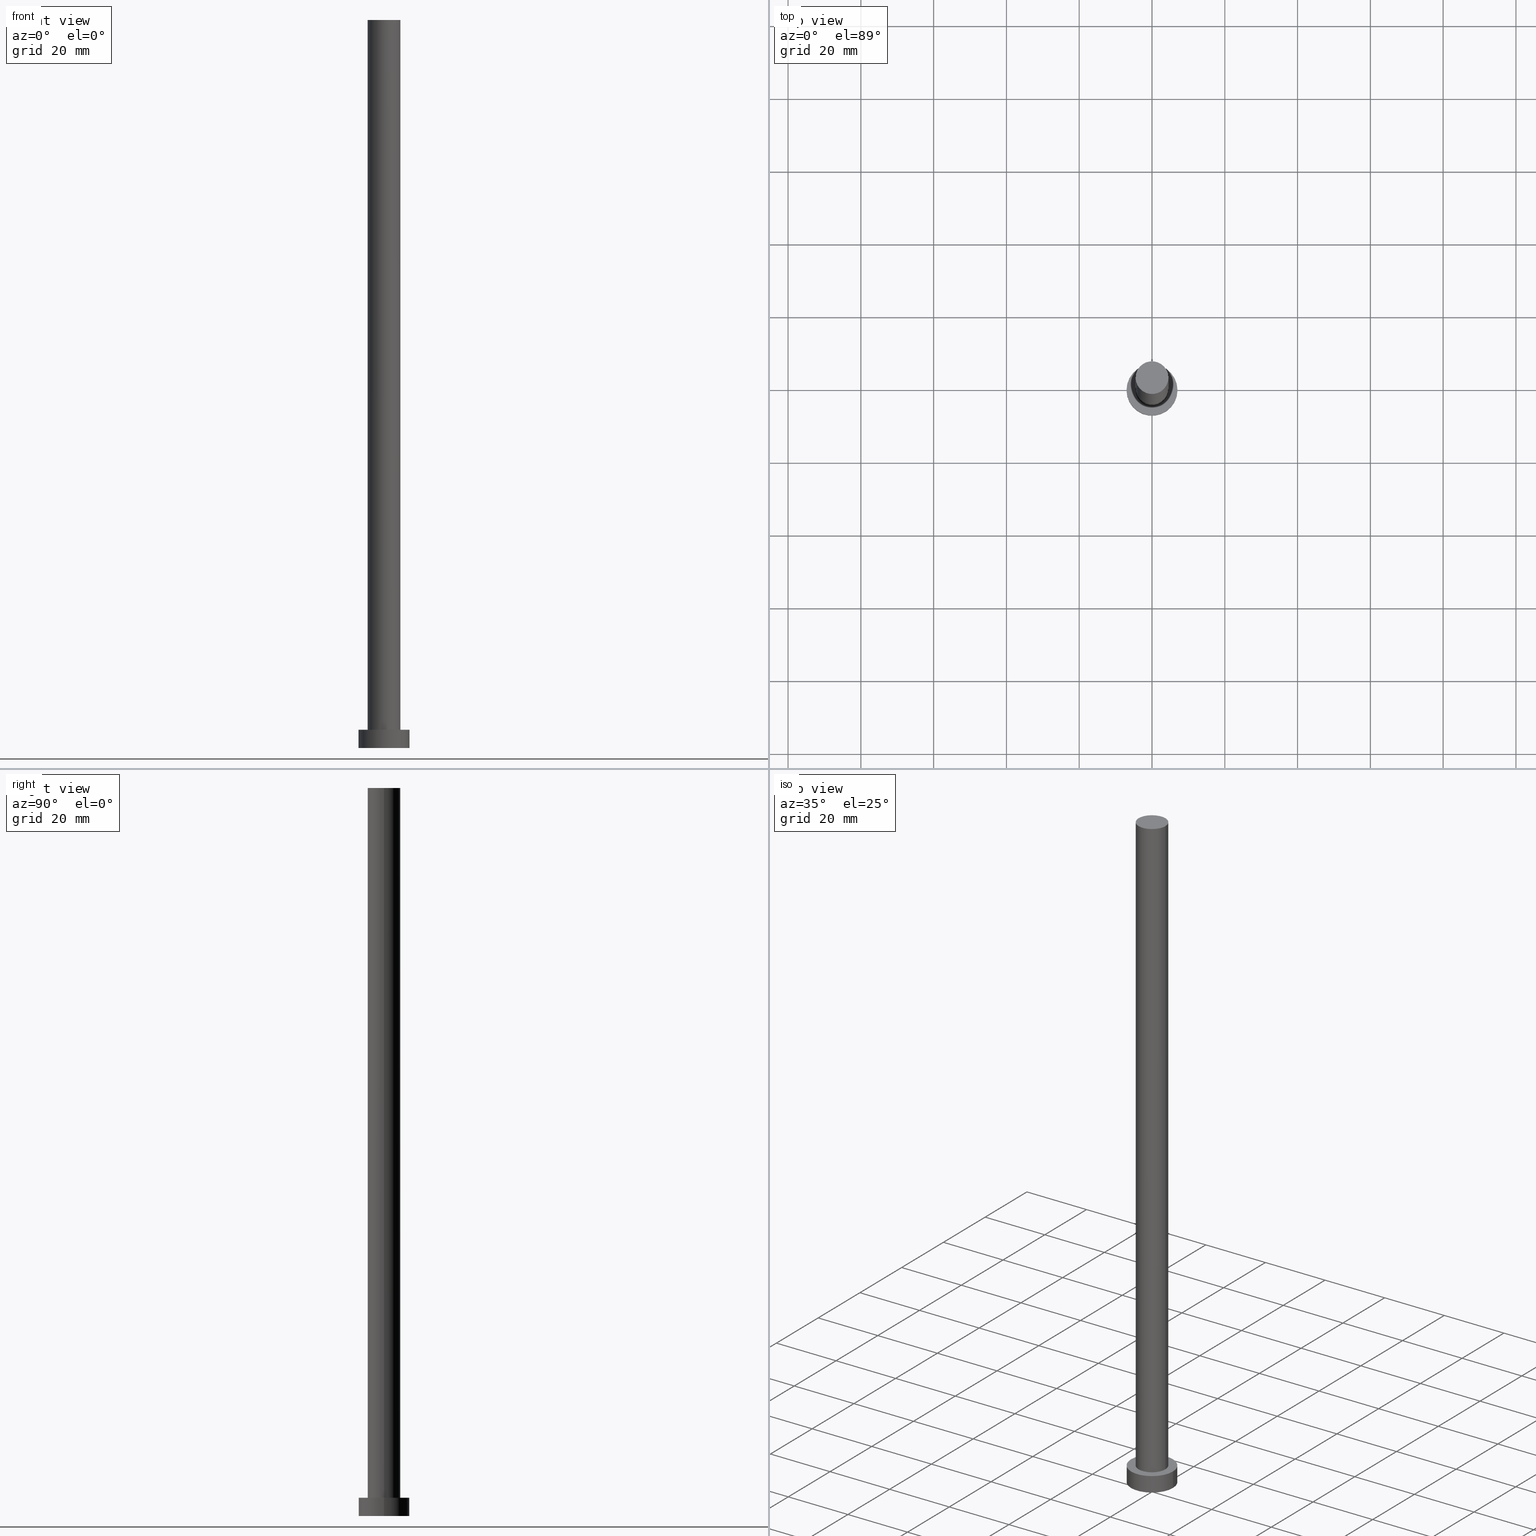
[diagram: canonical four-view strip — front | top / right | iso, engineering-drawing reading convention]
A machine part, canonical four-view strip (front | top / right | iso — engineering-drawing reading convention). The complete STEP part file that produces these views, byte-faithful:
ISO-10303-21;
HEADER;
FILE_DESCRIPTION (( 'STEP AP203' ),
    '1' );
FILE_NAME ('adfc.STEP',
    '2023-02-13T10:50:50',
    ( '' ),
    ( '' ),
    'SwSTEP 2.0',
    'SolidWorks 2019',
    '' );
FILE_SCHEMA (( 'CONFIG_CONTROL_DESIGN' ));
ENDSEC;

DATA;
#1 = DIRECTION ( 'NONE',  ( 0.000000000000000000, 0.000000000000000000, 1.000000000000000000 ) ) ;
#2 = PERSON_AND_ORGANIZATION ( #99, #81 ) ;
#3 = SHAPE_DEFINITION_REPRESENTATION ( #186, #176 ) ;
#4 = COORDINATED_UNIVERSAL_TIME_OFFSET ( 1, 0, .AHEAD. ) ;
#5 = ORIENTED_EDGE ( 'NONE', *, *, #194, .T. ) ;
#6 = EDGE_CURVE ( 'NONE', #10, #137, #82, .T. ) ;
#7 = APPROVAL_ROLE ( '' ) ;
#8 = APPROVAL_STATUS ( 'not_yet_approved' ) ;
#9 = AXIS2_PLACEMENT_3D ( 'NONE', #101, #141, #185 ) ;
#10 = VERTEX_POINT ( 'NONE', #79 ) ;
#11 = APPROVAL_PERSON_ORGANIZATION ( #196, #32, #7 ) ;
#12 = PERSON_AND_ORGANIZATION ( #99, #81 ) ;
#13 = ORIENTED_EDGE ( 'NONE', *, *, #104, .T. ) ;
#14 = CARTESIAN_POINT ( 'NONE',  ( 0.000000000000000000, 0.000000000000000000, 200.0000000000000000 ) ) ;
#15 = MANIFOLD_SOLID_BREP ( 'P�idat vysunut�m3', #216 ) ;
#16 = FACE_OUTER_BOUND ( 'NONE', #157, .T. ) ;
#17 = CARTESIAN_POINT ( 'NONE',  ( -7.000000000000000000, 0.000000000000000000, 0.000000000000000000 ) ) ;
#18 = ORIENTED_EDGE ( 'NONE', *, *, #198, .F. ) ;
#19 = CARTESIAN_POINT ( 'NONE',  ( 4.500000000000000888, 5.510910596163089556E-16, 5.000000000000000000 ) ) ;
#20 = PERSON_AND_ORGANIZATION_ROLE ( 'design_owner' ) ;
#21 = CARTESIAN_POINT ( 'NONE',  ( 0.000000000000000000, 0.000000000000000000, 200.0000000000000000 ) ) ;
#22 = CC_DESIGN_APPROVAL ( #88, ( #240 ) ) ;
#23 = CARTESIAN_POINT ( 'NONE',  ( 0.000000000000000000, 0.000000000000000000, 5.000000000000000000 ) ) ;
#24 = DATE_AND_TIME ( #215, #69 ) ;
#25 = ORIENTED_EDGE ( 'NONE', *, *, #62, .F. ) ;
#26 = VERTEX_POINT ( 'NONE', #232 ) ;
#27 = CIRCLE ( 'NONE', #251, 4.500000000000000888 ) ;
#28 = ORIENTED_EDGE ( 'NONE', *, *, #6, .F. ) ;
#29 = PRODUCT_DEFINITION ( 'NEZN�M�', '', #42, #236 ) ;
#30 = PERSON_AND_ORGANIZATION_ROLE ( 'creator' ) ;
#31 = VERTEX_POINT ( 'NONE', #17 ) ;
#32 = APPROVAL ( #245, 'NEUR�EN�' ) ;
#33 = CIRCLE ( 'NONE', #96, 7.000000000000000000 ) ;
#34 = FACE_BOUND ( 'NONE', #73, .T. ) ;
#35 = ORIENTED_EDGE ( 'NONE', *, *, #52, .T. ) ;
#36 = CARTESIAN_POINT ( 'NONE',  ( 7.000000000000000000, 8.572527594031473190E-16, 0.000000000000000000 ) ) ;
#37 = DIRECTION ( 'NONE',  ( -0.000000000000000000, -0.000000000000000000, -1.000000000000000000 ) ) ;
#38 = EDGE_LOOP ( 'NONE', ( #28, #187, #56, #200 ) ) ;
#39 = DIRECTION ( 'NONE',  ( 0.000000000000000000, 0.000000000000000000, 1.000000000000000000 ) ) ;
#40 = PRODUCT_RELATED_PRODUCT_CATEGORY ( 'detail', '', ( #124 ) ) ;
#41 = CARTESIAN_POINT ( 'NONE',  ( 0.000000000000000000, 0.000000000000000000, 0.000000000000000000 ) ) ;
#42 = PRODUCT_DEFINITION_FORMATION_WITH_SPECIFIED_SOURCE ( 'LIBOVOLN�', '', #124, .NOT_KNOWN. ) ;
#43 = EDGE_CURVE ( 'NONE', #26, #76, #162, .T. ) ;
#44 = DIRECTION ( 'NONE',  ( 0.000000000000000000, 0.000000000000000000, 1.000000000000000000 ) ) ;
#45 = AXIS2_PLACEMENT_3D ( 'NONE', #125, #39, #144 ) ;
#46 = DATE_TIME_ROLE ( 'creation_date' ) ;
#47 = APPLICATION_CONTEXT ( 'configuration controlled 3d designs of mechanical parts and assemblies' ) ;
#48 = ORIENTED_EDGE ( 'NONE', *, *, #104, .F. ) ;
#49 = CC_DESIGN_PERSON_AND_ORGANIZATION_ASSIGNMENT ( #66, #115, ( #240 ) ) ;
#50 = APPROVAL_DATE_TIME ( #153, #32 ) ;
#51 = PERSON_AND_ORGANIZATION_ROLE ( 'design_supplier' ) ;
#52 = EDGE_CURVE ( 'NONE', #76, #31, #74, .T. ) ;
#53 = CARTESIAN_POINT ( 'NONE',  ( 4.500000000000000888, 5.510910596163089556E-16, 200.0000000000000000 ) ) ;
#54 = ADVANCED_FACE ( 'NONE', ( #164 ), #252, .T. ) ;
#55 = VERTEX_POINT ( 'NONE', #254 ) ;
#56 = ORIENTED_EDGE ( 'NONE', *, *, #62, .T. ) ;
#57 = CIRCLE ( 'NONE', #94, 4.500000000000000888 ) ;
#58 = CIRCLE ( 'NONE', #113, 7.000000000000000000 ) ;
#59 = DIRECTION ( 'NONE',  ( -0.000000000000000000, -0.000000000000000000, -1.000000000000000000 ) ) ;
#60 = APPROVAL_PERSON_ORGANIZATION ( #70, #88, #95 ) ;
#61 = APPLICATION_PROTOCOL_DEFINITION ( 'international standard', 'config_control_design', 1994, #103 ) ;
#62 = EDGE_CURVE ( 'NONE', #102, #230, #253, .T. ) ;
#63 = DIRECTION ( 'NONE',  ( 1.000000000000000000, 0.000000000000000000, 0.000000000000000000 ) ) ;
#64 = DIRECTION ( 'NONE',  ( -0.000000000000000000, -0.000000000000000000, -1.000000000000000000 ) ) ;
#65 = SECURITY_CLASSIFICATION_LEVEL ( 'unclassified' ) ;
#66 = PERSON_AND_ORGANIZATION ( #99, #81 ) ;
#67 = EDGE_LOOP ( 'NONE', ( #92, #193, #219, #150 ) ) ;
#68 = CALENDAR_DATE ( 2023, 13, 2 ) ;
#69 = LOCAL_TIME ( 11, 50, 50.00000000000000000, #175 ) ;
#70 = PERSON_AND_ORGANIZATION ( #99, #81 ) ;
#71 = EDGE_LOOP ( 'NONE', ( #48, #234, #152, #25 ) ) ;
#72 = ADVANCED_FACE ( 'NONE', ( #159 ), #160, .F. ) ;
#73 = EDGE_LOOP ( 'NONE', ( #132, #174 ) ) ;
#74 = CIRCLE ( 'NONE', #9, 7.000000000000000000 ) ;
#75 = DIRECTION ( 'NONE',  ( 0.000000000000000000, 0.000000000000000000, 1.000000000000000000 ) ) ;
#76 = VERTEX_POINT ( 'NONE', #36 ) ;
#77 = ADVANCED_FACE ( 'NONE', ( #202 ), #231, .T. ) ;
#78 = ADVANCED_FACE ( 'NONE', ( #34, #16 ), #117, .T. ) ;
#79 = CARTESIAN_POINT ( 'NONE',  ( 4.500000000000000888, 5.510910596163089556E-16, 200.0000000000000000 ) ) ;
#80 = CARTESIAN_POINT ( 'NONE',  ( -4.500000000000000888, 0.000000000000000000, 200.0000000000000000 ) ) ;
#81 = ORGANIZATION ( 'NEUR�EN�', 'NEUR�EN�', '' ) ;
#82 = LINE ( 'NONE', #53, #206 ) ;
#83 = DIRECTION ( 'NONE',  ( 1.000000000000000000, 0.000000000000000000, 0.000000000000000000 ) ) ;
#84 = AXIS2_PLACEMENT_3D ( 'NONE', #183, #110, #83 ) ;
#85 = CARTESIAN_POINT ( 'NONE',  ( 0.000000000000000000, 0.000000000000000000, 5.000000000000000000 ) ) ;
#86 = CARTESIAN_POINT ( 'NONE',  ( 0.000000000000000000, 0.000000000000000000, 5.000000000000000000 ) ) ;
#87 = AXIS2_PLACEMENT_3D ( 'NONE', #97, #119, #184 ) ;
#88 = APPROVAL ( #8, 'NEUR�EN�' ) ;
#89 = ORIENTED_EDGE ( 'NONE', *, *, #93, .T. ) ;
#90 = COORDINATED_UNIVERSAL_TIME_OFFSET ( 1, 0, .AHEAD. ) ;
#91 = EDGE_LOOP ( 'NONE', ( #18, #155 ) ) ;
#92 = ORIENTED_EDGE ( 'NONE', *, *, #43, .F. ) ;
#93 = EDGE_CURVE ( 'NONE', #102, #10, #143, .T. ) ;
#94 = AXIS2_PLACEMENT_3D ( 'NONE', #86, #1, #168 ) ;
#95 = APPROVAL_ROLE ( '' ) ;
#96 = AXIS2_PLACEMENT_3D ( 'NONE', #222, #148, #239 ) ;
#97 = CARTESIAN_POINT ( 'NONE',  ( 0.000000000000000000, 0.000000000000000000, 200.0000000000000000 ) ) ;
#98 = CIRCLE ( 'NONE', #84, 4.500000000000000888 ) ;
#99 = PERSON ( 'NEUR�EN�', 'NEUR�EN�', 'NEUR�EN�', ('NEUR�EN�'), ('NEUR�EN�'), ('NEUR�EN�') ) ;
#100 = CARTESIAN_POINT ( 'NONE',  ( -4.500000000000000888, 0.000000000000000000, 200.0000000000000000 ) ) ;
#101 = CARTESIAN_POINT ( 'NONE',  ( 0.000000000000000000, 0.000000000000000000, 0.000000000000000000 ) ) ;
#102 = VERTEX_POINT ( 'NONE', #100 ) ;
#103 = APPLICATION_CONTEXT ( 'configuration controlled 3d designs of mechanical parts and assemblies' ) ;
#104 = EDGE_CURVE ( 'NONE', #10, #102, #98, .T. ) ;
#105 = CARTESIAN_POINT ( 'NONE',  ( 0.000000000000000000, 0.000000000000000000, 5.000000000000000000 ) ) ;
#106 = CC_DESIGN_APPROVAL ( #32, ( #42 ) ) ;
#107 = APPLICATION_PROTOCOL_DEFINITION ( 'international standard', 'config_control_design', 1994, #47 ) ;
#108 = DIRECTION ( 'NONE',  ( 1.000000000000000000, 0.000000000000000000, 0.000000000000000000 ) ) ;
#109 = DIRECTION ( 'NONE',  ( -0.000000000000000000, -0.000000000000000000, -1.000000000000000000 ) ) ;
#110 = DIRECTION ( 'NONE',  ( 0.000000000000000000, 0.000000000000000000, 1.000000000000000000 ) ) ;
#111 = DATE_TIME_ROLE ( 'classification_date' ) ;
#112 = ORIENTED_EDGE ( 'NONE', *, *, #194, .F. ) ;
#113 = AXIS2_PLACEMENT_3D ( 'NONE', #165, #129, #190 ) ;
#114 = APPROVAL_STATUS ( 'not_yet_approved' ) ;
#115 = PERSON_AND_ORGANIZATION_ROLE ( 'classification_officer' ) ;
#116 = COORDINATED_UNIVERSAL_TIME_OFFSET ( 1, 0, .AHEAD. ) ;
#117 = PLANE ( 'NONE',  #161 ) ;
#118 = EDGE_CURVE ( 'NONE', #137, #230, #57, .T. ) ;
#119 = DIRECTION ( 'NONE',  ( -0.000000000000000000, -0.000000000000000000, -1.000000000000000000 ) ) ;
#120 = DIRECTION ( 'NONE',  ( 0.000000000000000000, 0.000000000000000000, 1.000000000000000000 ) ) ;
#121 = AXIS2_PLACEMENT_3D ( 'NONE', #221, #120, #205 ) ;
#122 = UNCERTAINTY_MEASURE_WITH_UNIT (LENGTH_MEASURE( 1.000000000000000082E-05 ), #224, 'distance_accuracy_value', 'NONE');
#123 =( NAMED_UNIT ( * ) PLANE_ANGLE_UNIT ( ) SI_UNIT ( $, .RADIAN. ) );
#124 = PRODUCT ( 'adfc', 'adfc', '', ( #188 ) ) ;
#125 = CARTESIAN_POINT ( 'NONE',  ( 0.000000000000000000, 0.000000000000000000, 200.0000000000000000 ) ) ;
#126 = CYLINDRICAL_SURFACE ( 'NONE', #145, 4.500000000000000888 ) ;
#127 = VECTOR ( 'NONE', #37, 1000.000000000000000 ) ;
#128 = APPROVAL_PERSON_ORGANIZATION ( #12, #212, #154 ) ;
#129 = DIRECTION ( 'NONE',  ( 0.000000000000000000, 0.000000000000000000, 1.000000000000000000 ) ) ;
#130 = CC_DESIGN_DATE_AND_TIME_ASSIGNMENT ( #249, #46, ( #29 ) ) ;
#131 = CALENDAR_DATE ( 2023, 13, 2 ) ;
#132 = ORIENTED_EDGE ( 'NONE', *, *, #151, .F. ) ;
#133 = PERSON_AND_ORGANIZATION_ROLE ( 'creator' ) ;
#134 = LOCAL_TIME ( 11, 50, 50.00000000000000000, #116 ) ;
#135 = EDGE_CURVE ( 'NONE', #55, #31, #169, .T. ) ;
#136 = DIRECTION ( 'NONE',  ( 1.000000000000000000, 0.000000000000000000, -0.000000000000000000 ) ) ;
#137 = VERTEX_POINT ( 'NONE', #19 ) ;
#138 = ADVANCED_FACE ( 'NONE', ( #170 ), #126, .T. ) ;
#139 = ORIENTED_EDGE ( 'NONE', *, *, #43, .T. ) ;
#140 = LOCAL_TIME ( 11, 50, 50.00000000000000000, #4 ) ;
#141 = DIRECTION ( 'NONE',  ( 0.000000000000000000, 0.000000000000000000, 1.000000000000000000 ) ) ;
#142 = CARTESIAN_POINT ( 'NONE',  ( 0.000000000000000000, 0.000000000000000000, 5.000000000000000000 ) ) ;
#143 = CIRCLE ( 'NONE', #213, 4.500000000000000888 ) ;
#144 = DIRECTION ( 'NONE',  ( 1.000000000000000000, 0.000000000000000000, -0.000000000000000000 ) ) ;
#145 = AXIS2_PLACEMENT_3D ( 'NONE', #21, #207, #225 ) ;
#146 = DIRECTION ( 'NONE',  ( -1.000000000000000000, 0.000000000000000000, 0.000000000000000000 ) ) ;
#147 = PLANE ( 'NONE',  #45 ) ;
#148 = DIRECTION ( 'NONE',  ( 0.000000000000000000, 0.000000000000000000, 1.000000000000000000 ) ) ;
#149 = ADVANCED_FACE ( 'NONE', ( #244 ), #241, .T. ) ;
#150 = ORIENTED_EDGE ( 'NONE', *, *, #198, .T. ) ;
#151 = EDGE_CURVE ( 'NONE', #230, #137, #27, .T. ) ;
#152 = ORIENTED_EDGE ( 'NONE', *, *, #118, .T. ) ;
#153 = DATE_AND_TIME ( #68, #199 ) ;
#154 = APPROVAL_ROLE ( '' ) ;
#155 = ORIENTED_EDGE ( 'NONE', *, *, #52, .F. ) ;
#156 = CC_DESIGN_PERSON_AND_ORGANIZATION_ASSIGNMENT ( #180, #51, ( #42 ) ) ;
#157 = EDGE_LOOP ( 'NONE', ( #227, #5 ) ) ;
#158 = LOCAL_TIME ( 11, 50, 50.00000000000000000, #90 ) ;
#159 = FACE_OUTER_BOUND ( 'NONE', #91, .T. ) ;
#160 = PLANE ( 'NONE',  #121 ) ;
#161 = AXIS2_PLACEMENT_3D ( 'NONE', #181, #75, #136 ) ;
#162 = LINE ( 'NONE', #220, #127 ) ;
#163 = AXIS2_PLACEMENT_3D ( 'NONE', #85, #189, #63 ) ;
#164 = FACE_OUTER_BOUND ( 'NONE', #38, .T. ) ;
#165 = CARTESIAN_POINT ( 'NONE',  ( 0.000000000000000000, 0.000000000000000000, 5.000000000000000000 ) ) ;
#166 = ADVANCED_FACE ( 'NONE', ( #242 ), #147, .T. ) ;
#167 =( NAMED_UNIT ( * ) SI_UNIT ( $, .STERADIAN. ) SOLID_ANGLE_UNIT ( ) );
#168 = DIRECTION ( 'NONE',  ( 1.000000000000000000, 0.000000000000000000, 0.000000000000000000 ) ) ;
#169 = LINE ( 'NONE', #238, #250 ) ;
#170 = FACE_OUTER_BOUND ( 'NONE', #71, .T. ) ;
#171 = PERSON_AND_ORGANIZATION ( #99, #81 ) ;
#172 = EDGE_LOOP ( 'NONE', ( #89, #13 ) ) ;
#173 = APPROVAL_DATE_TIME ( #24, #212 ) ;
#174 = ORIENTED_EDGE ( 'NONE', *, *, #118, .F. ) ;
#175 = COORDINATED_UNIVERSAL_TIME_OFFSET ( 1, 0, .AHEAD. ) ;
#176 = ADVANCED_BREP_SHAPE_REPRESENTATION ( 'adfc', ( #15, #235 ), #210 ) ;
#177 = DATE_AND_TIME ( #131, #158 ) ;
#178 = CC_DESIGN_SECURITY_CLASSIFICATION ( #240, ( #42 ) ) ;
#179 = CC_DESIGN_PERSON_AND_ORGANIZATION_ASSIGNMENT ( #171, #133, ( #29 ) ) ;
#180 = PERSON_AND_ORGANIZATION ( #99, #81 ) ;
#181 = CARTESIAN_POINT ( 'NONE',  ( 0.000000000000000000, 0.000000000000000000, 5.000000000000000000 ) ) ;
#182 = AXIS2_PLACEMENT_3D ( 'NONE', #23, #64, #146 ) ;
#183 = CARTESIAN_POINT ( 'NONE',  ( 0.000000000000000000, 0.000000000000000000, 200.0000000000000000 ) ) ;
#184 = DIRECTION ( 'NONE',  ( -1.000000000000000000, 0.000000000000000000, 0.000000000000000000 ) ) ;
#185 = DIRECTION ( 'NONE',  ( 1.000000000000000000, 0.000000000000000000, 0.000000000000000000 ) ) ;
#186 = PRODUCT_DEFINITION_SHAPE ( 'NONE', 'NONE',  #29 ) ;
#187 = ORIENTED_EDGE ( 'NONE', *, *, #93, .F. ) ;
#188 = MECHANICAL_CONTEXT ( 'NONE', #47, 'mechanical' ) ;
#189 = DIRECTION ( 'NONE',  ( 0.000000000000000000, 0.000000000000000000, 1.000000000000000000 ) ) ;
#190 = DIRECTION ( 'NONE',  ( 1.000000000000000000, 0.000000000000000000, 0.000000000000000000 ) ) ;
#191 = CIRCLE ( 'NONE', #163, 7.000000000000000000 ) ;
#192 = AXIS2_PLACEMENT_3D ( 'NONE', #105, #237, #217 ) ;
#193 = ORIENTED_EDGE ( 'NONE', *, *, #233, .F. ) ;
#194 = EDGE_CURVE ( 'NONE', #26, #55, #191, .T. ) ;
#195 = CC_DESIGN_PERSON_AND_ORGANIZATION_ASSIGNMENT ( #2, #20, ( #124 ) ) ;
#196 = PERSON_AND_ORGANIZATION ( #99, #81 ) ;
#197 = CALENDAR_DATE ( 2023, 13, 2 ) ;
#198 = EDGE_CURVE ( 'NONE', #31, #76, #33, .T. ) ;
#199 = LOCAL_TIME ( 11, 50, 50.00000000000000000, #211 ) ;
#200 = ORIENTED_EDGE ( 'NONE', *, *, #151, .T. ) ;
#201 = DIRECTION ( 'NONE',  ( 1.000000000000000000, 0.000000000000000000, 0.000000000000000000 ) ) ;
#202 = FACE_OUTER_BOUND ( 'NONE', #228, .T. ) ;
#203 = CC_DESIGN_APPROVAL ( #212, ( #29 ) ) ;
#204 = DIRECTION ( 'NONE',  ( -0.000000000000000000, -0.000000000000000000, -1.000000000000000000 ) ) ;
#205 = DIRECTION ( 'NONE',  ( 1.000000000000000000, 0.000000000000000000, -0.000000000000000000 ) ) ;
#206 = VECTOR ( 'NONE', #59, 1000.000000000000000 ) ;
#207 = DIRECTION ( 'NONE',  ( -0.000000000000000000, -0.000000000000000000, -1.000000000000000000 ) ) ;
#208 = DIRECTION ( 'NONE',  ( 0.000000000000000000, 0.000000000000000000, 1.000000000000000000 ) ) ;
#209 = DIRECTION ( 'NONE',  ( 1.000000000000000000, 0.000000000000000000, 0.000000000000000000 ) ) ;
#210 =( GEOMETRIC_REPRESENTATION_CONTEXT ( 3 ) GLOBAL_UNCERTAINTY_ASSIGNED_CONTEXT ( ( #122 ) ) GLOBAL_UNIT_ASSIGNED_CONTEXT ( ( #224, #123, #167 ) ) REPRESENTATION_CONTEXT ( 'NONE', 'WORKASPACE' ) );
#211 = COORDINATED_UNIVERSAL_TIME_OFFSET ( 1, 0, .AHEAD. ) ;
#212 = APPROVAL ( #114, 'NEUR�EN�' ) ;
#213 = AXIS2_PLACEMENT_3D ( 'NONE', #14, #218, #201 ) ;
#214 = APPROVAL_DATE_TIME ( #177, #88 ) ;
#215 = CALENDAR_DATE ( 2023, 13, 2 ) ;
#216 = CLOSED_SHELL ( 'NONE', ( #138, #77, #149, #78, #72, #54, #166 ) ) ;
#217 = DIRECTION ( 'NONE',  ( -1.000000000000000000, 0.000000000000000000, 0.000000000000000000 ) ) ;
#218 = DIRECTION ( 'NONE',  ( 0.000000000000000000, 0.000000000000000000, 1.000000000000000000 ) ) ;
#219 = ORIENTED_EDGE ( 'NONE', *, *, #135, .T. ) ;
#220 = CARTESIAN_POINT ( 'NONE',  ( 7.000000000000000000, 8.572527594031473190E-16, 5.000000000000000000 ) ) ;
#221 = CARTESIAN_POINT ( 'NONE',  ( 0.000000000000000000, 0.000000000000000000, 0.000000000000000000 ) ) ;
#222 = CARTESIAN_POINT ( 'NONE',  ( 0.000000000000000000, 0.000000000000000000, 0.000000000000000000 ) ) ;
#223 = CARTESIAN_POINT ( 'NONE',  ( -4.500000000000000888, 0.000000000000000000, 5.000000000000000000 ) ) ;
#224 =( LENGTH_UNIT ( ) NAMED_UNIT ( * ) SI_UNIT ( .MILLI., .METRE. ) );
#225 = DIRECTION ( 'NONE',  ( -1.000000000000000000, 0.000000000000000000, 0.000000000000000000 ) ) ;
#226 = CC_DESIGN_DATE_AND_TIME_ASSIGNMENT ( #246, #111, ( #240 ) ) ;
#227 = ORIENTED_EDGE ( 'NONE', *, *, #233, .T. ) ;
#228 = EDGE_LOOP ( 'NONE', ( #112, #139, #35, #255 ) ) ;
#229 = PERSON_AND_ORGANIZATION ( #99, #81 ) ;
#230 = VERTEX_POINT ( 'NONE', #223 ) ;
#231 = CYLINDRICAL_SURFACE ( 'NONE', #192, 7.000000000000000000 ) ;
#232 = CARTESIAN_POINT ( 'NONE',  ( 7.000000000000000000, 8.572527594031473190E-16, 5.000000000000000000 ) ) ;
#233 = EDGE_CURVE ( 'NONE', #55, #26, #58, .T. ) ;
#234 = ORIENTED_EDGE ( 'NONE', *, *, #6, .T. ) ;
#235 = AXIS2_PLACEMENT_3D ( 'NONE', #41, #208, #209 ) ;
#236 = DESIGN_CONTEXT ( 'detailed design', #103, 'design' ) ;
#237 = DIRECTION ( 'NONE',  ( -0.000000000000000000, -0.000000000000000000, -1.000000000000000000 ) ) ;
#238 = CARTESIAN_POINT ( 'NONE',  ( -7.000000000000000000, 0.000000000000000000, 5.000000000000000000 ) ) ;
#239 = DIRECTION ( 'NONE',  ( 1.000000000000000000, 0.000000000000000000, 0.000000000000000000 ) ) ;
#240 = SECURITY_CLASSIFICATION ( '', '', #65 ) ;
#241 = CYLINDRICAL_SURFACE ( 'NONE', #182, 7.000000000000000000 ) ;
#242 = FACE_OUTER_BOUND ( 'NONE', #172, .T. ) ;
#243 = CC_DESIGN_PERSON_AND_ORGANIZATION_ASSIGNMENT ( #229, #30, ( #42 ) ) ;
#244 = FACE_OUTER_BOUND ( 'NONE', #67, .T. ) ;
#245 = APPROVAL_STATUS ( 'not_yet_approved' ) ;
#246 = DATE_AND_TIME ( #197, #134 ) ;
#247 = CALENDAR_DATE ( 2023, 13, 2 ) ;
#248 = VECTOR ( 'NONE', #204, 1000.000000000000000 ) ;
#249 = DATE_AND_TIME ( #247, #140 ) ;
#250 = VECTOR ( 'NONE', #109, 1000.000000000000000 ) ;
#251 = AXIS2_PLACEMENT_3D ( 'NONE', #142, #44, #108 ) ;
#252 = CYLINDRICAL_SURFACE ( 'NONE', #87, 4.500000000000000888 ) ;
#253 = LINE ( 'NONE', #80, #248 ) ;
#254 = CARTESIAN_POINT ( 'NONE',  ( -7.000000000000000000, 0.000000000000000000, 5.000000000000000000 ) ) ;
#255 = ORIENTED_EDGE ( 'NONE', *, *, #135, .F. ) ;
ENDSEC;
END-ISO-10303-21;
